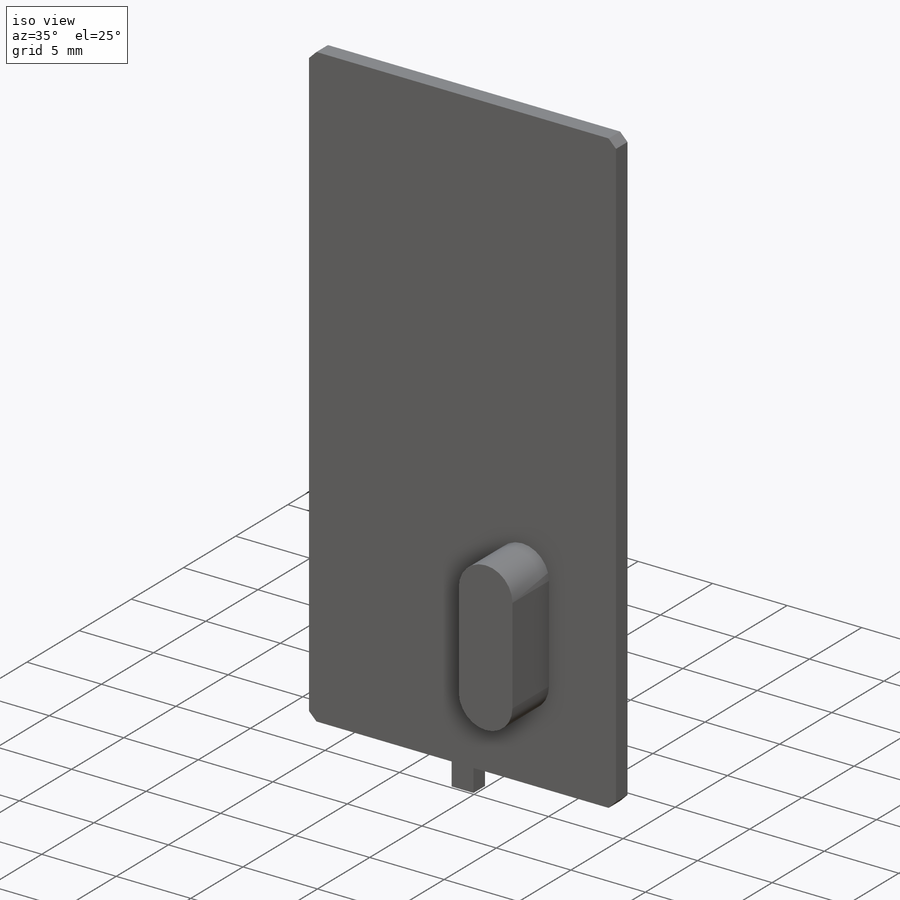
[diagram: iso view]
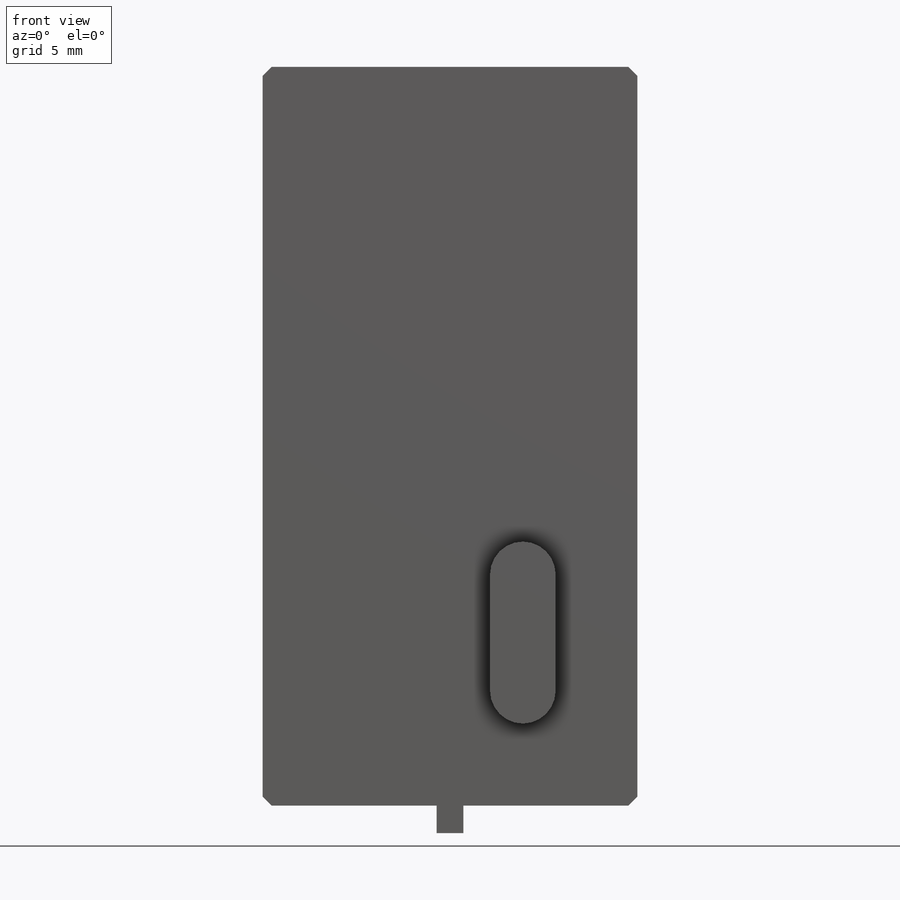
[diagram: front view]
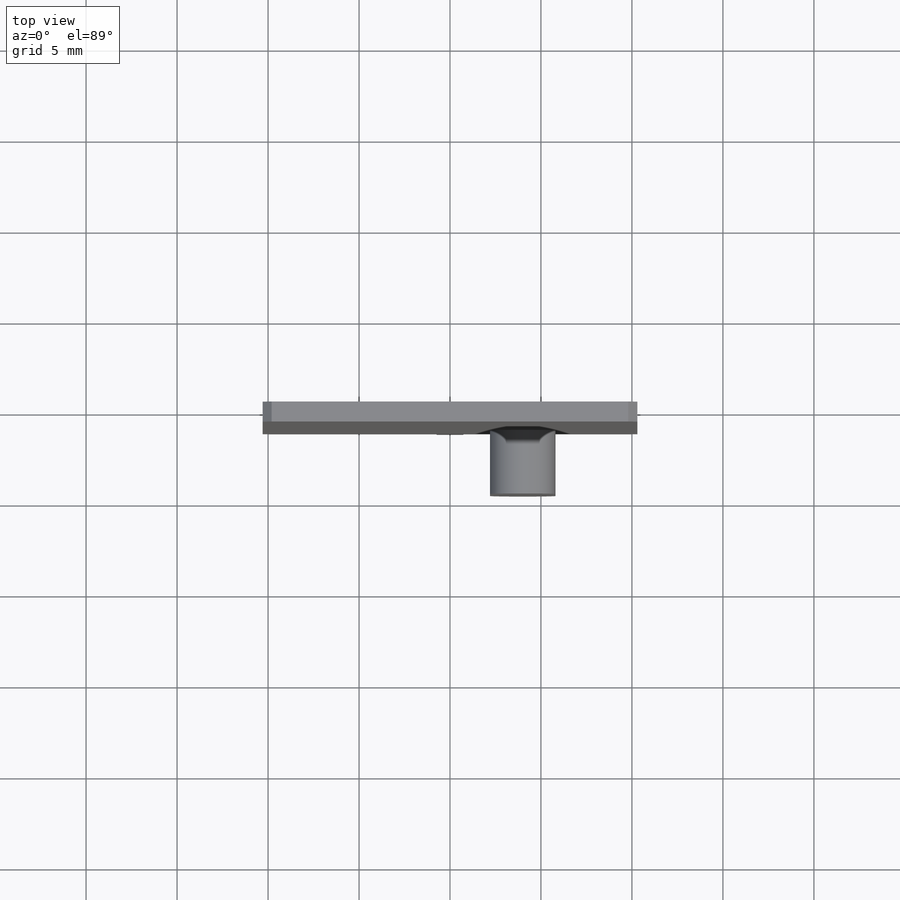
[diagram: top view]
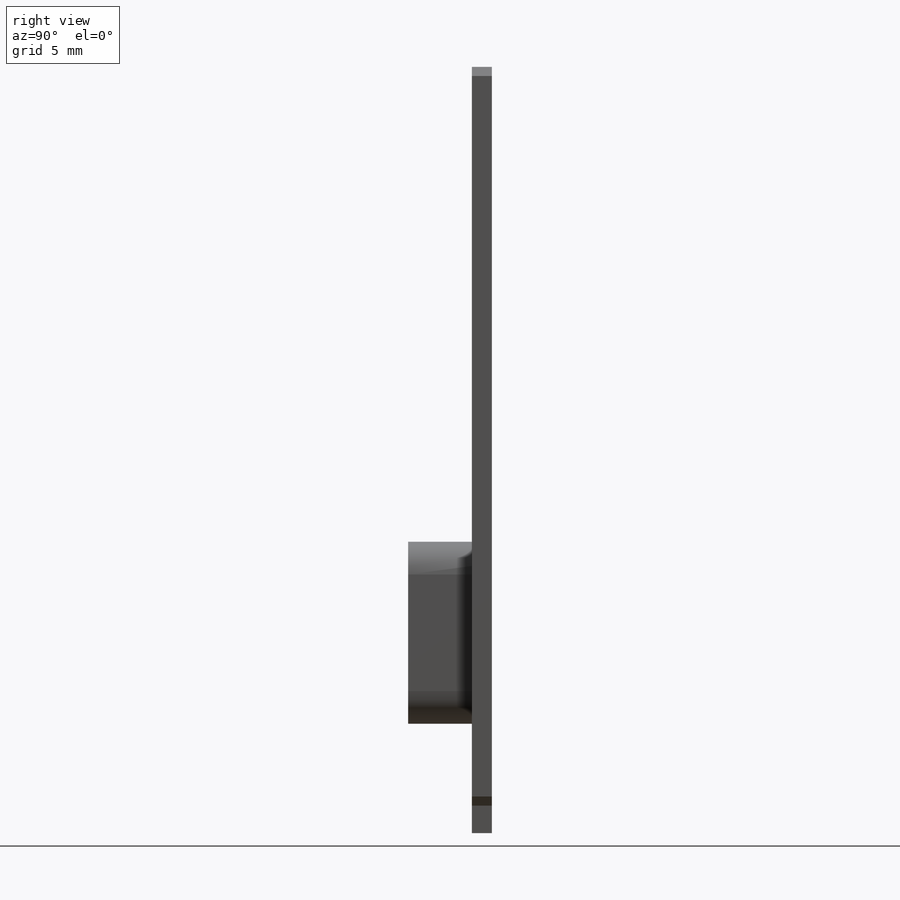
[diagram: right view]
SOLIDWORKS PART (.sldprt)
format: sldprt  version: not decoded by parser v0  size: 224,768 bytes
history: native  units: mm
features: plane x3, sketch x3, extrude x3, material x1, chamfer x1 (+8 scaffold rows collapsed)
feature tree (19):
  scaffold x8  (default folders/planes/origin — collapsed)
  material  "Материал <не указан>"
  plane  "Спереди"
  plane  "Сверху"
  plane  "Справа"
  sketch  "Эскиз1"  dims[D1=20.6mm D2=40.6mm]
  extrude  "Бобышка-Вытянуть1"  Depth=1.1mm
  sketch  "Эскиз2"  dims[D1=1.8mm D2=6.4mm D3=4.5mm D4=4.5mm]
  extrude  "Бобышка-Вытянуть2"  Depth=3.5mm
  sketch  "Эскиз3"
  extrude  "Бобышка-Вытянуть3"  [1 undecoded]
  chamfer  "Фаска1"  Distance=0.5mm Angle=45deg
decode coverage: 5 of 7 modeling features carry decoded parameters
note: 1 parameter value undecoded
note: suppression state not decoded; provenance and decode notes live in map.json
